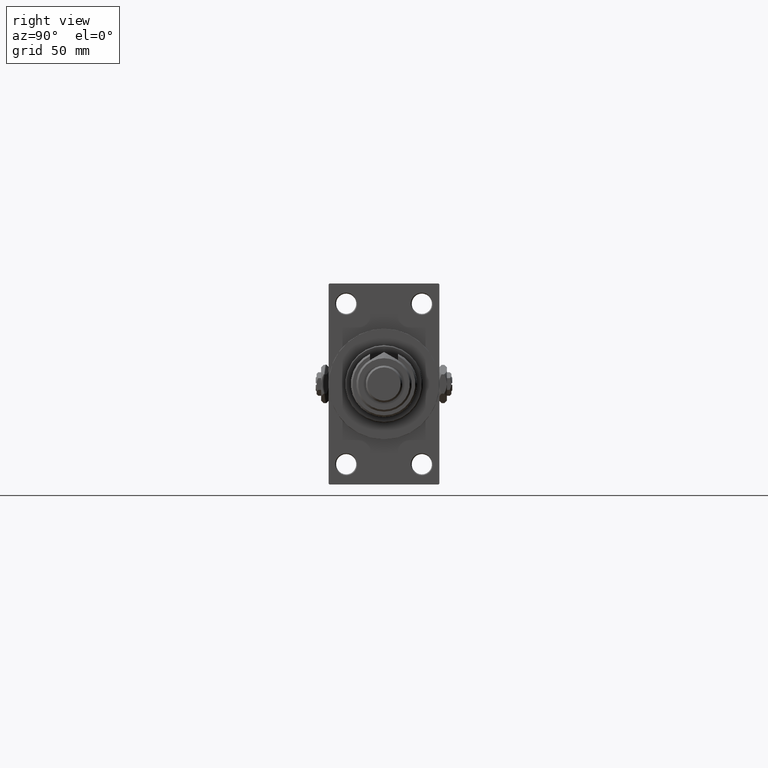
[diagram: clean part render]
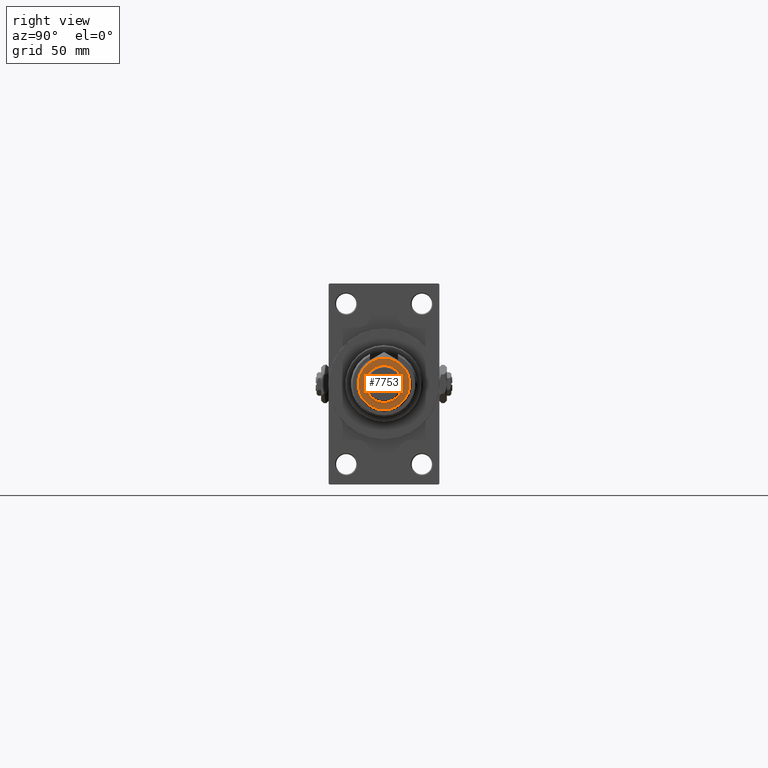
[diagram: same view with one face highlighted and labeled with its STEP entity id]
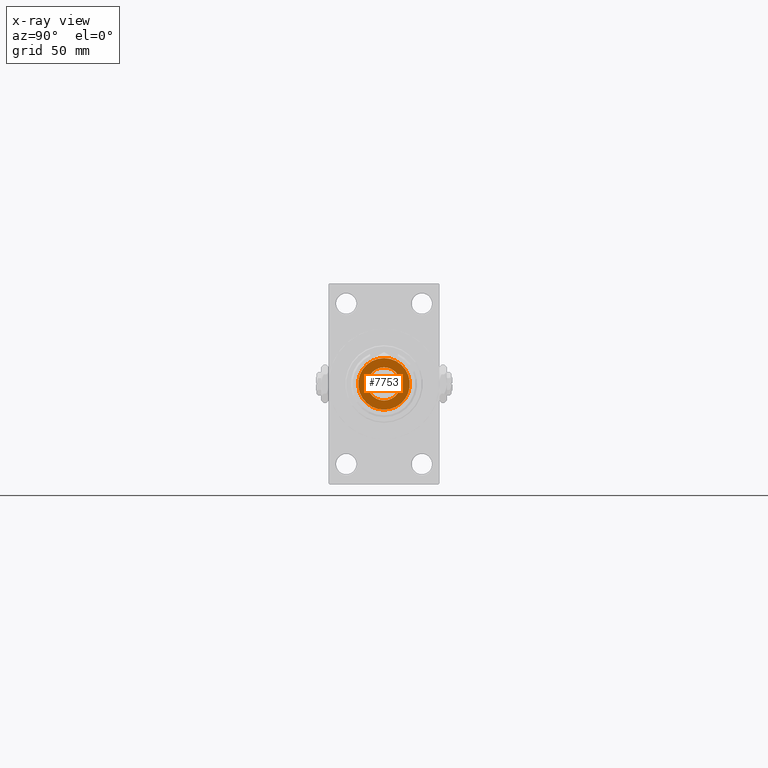
[diagram: x-ray of the same camera — body ghosted, the highlighted face saturated]
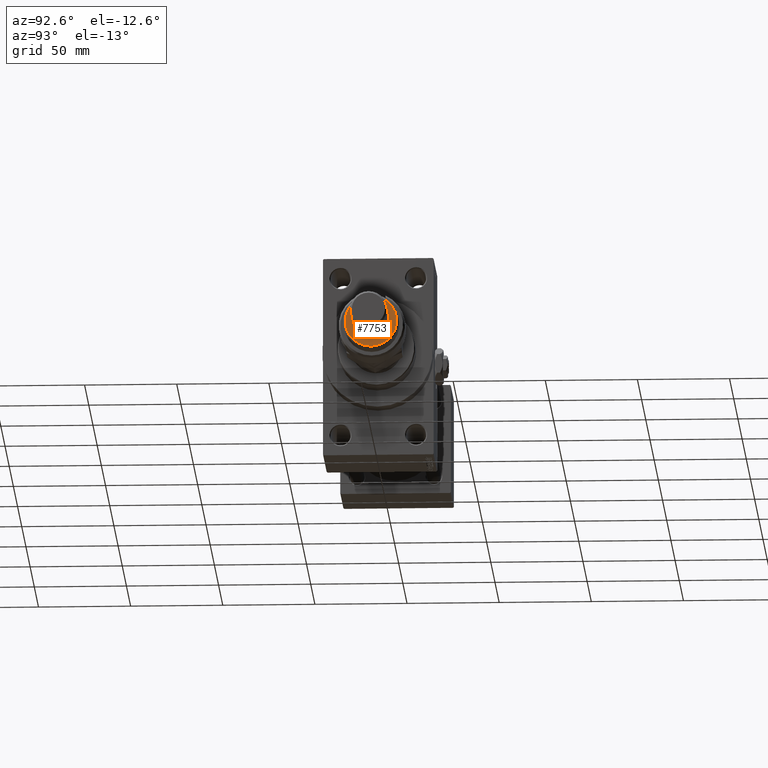
[diagram: same view with one face highlighted and labeled with its STEP entity id]
A machine part, right view. The second image highlights one B-rep face of the part: STEP entity #7753.
The next image is the same camera in x-ray: the body ghosted, the highlighted face saturated — about 0% of this face is hidden behind the body in this view.
A second angle (auxiliary view) of the same face is appended — the face is thin or edge-on in the first view.
In plain terms, the highlighted planar face has unit normal (1, 0, 0).
Its self-contained STEP definition (entity closure, byte-faithful):
#1563 = CARTESIAN_POINT ( 'NONE',  ( -9.000000000000000000, 0.000000000000000000, 26.00000000000000355 ) ) ;
#1695 = CARTESIAN_POINT ( 'NONE',  ( 0.000000000000000000, 0.000000000000000000, 26.00000000000000355 ) ) ;
#1915 = EDGE_CURVE ( 'NONE', #4215, #22550, #39638, .T. ) ;
#2121 = DIRECTION ( 'NONE',  ( 0.000000000000000000, 0.000000000000000000, 1.000000000000000000 ) ) ;
#2704 = ORIENTED_EDGE ( 'NONE', *, *, #35789, .T. ) ;
#4215 = VERTEX_POINT ( 'NONE', #18839 ) ;
#5153 = DIRECTION ( 'NONE',  ( 0.000000000000000000, 0.000000000000000000, 1.000000000000000000 ) ) ;
#5350 = DIRECTION ( 'NONE',  ( 0.000000000000000000, 0.000000000000000000, 1.000000000000000000 ) ) ;
#5408 = DIRECTION ( 'NONE',  ( 1.000000000000000000, 0.000000000000000000, -0.000000000000000000 ) ) ;
#7573 = VERTEX_POINT ( 'NONE', #31562 ) ;
#7753 = ADVANCED_FACE ( 'NONE', ( #24987, #10087 ), #21304, .T. ) ;
#7856 = DIRECTION ( 'NONE',  ( 1.000000000000000000, 0.000000000000000000, 0.000000000000000000 ) ) ;
#8646 = VERTEX_POINT ( 'NONE', #28152 ) ;
#8902 = CIRCLE ( 'NONE', #51328, 13.99999999999997513 ) ;
#9253 = DIRECTION ( 'NONE',  ( 0.000000000000000000, 0.000000000000000000, 1.000000000000000000 ) ) ;
#9420 = AXIS2_PLACEMENT_3D ( 'NONE', #37858, #2121, #33953 ) ;
#10087 = FACE_BOUND ( 'NONE', #34812, .T. ) ;
#11119 = CIRCLE ( 'NONE', #9420, 13.99999999999997513 ) ;
#11882 = CIRCLE ( 'NONE', #51011, 9.000000000000000000 ) ;
#12268 = AXIS2_PLACEMENT_3D ( 'NONE', #40887, #5153, #5408 ) ;
#12797 = CARTESIAN_POINT ( 'NONE',  ( 0.000000000000000000, 0.000000000000000000, 26.00000000000000355 ) ) ;
#12950 = ORIENTED_EDGE ( 'NONE', *, *, #25577, .T. ) ;
#16832 = DIRECTION ( 'NONE',  ( 1.000000000000000000, 0.000000000000000000, 0.000000000000000000 ) ) ;
#17147 = AXIS2_PLACEMENT_3D ( 'NONE', #1695, #5350, #37170 ) ;
#18839 = CARTESIAN_POINT ( 'NONE',  ( 9.000000000000000000, 1.102182119232617714E-15, 26.00000000000000355 ) ) ;
#20251 = ORIENTED_EDGE ( 'NONE', *, *, #22374, .F. ) ;
#21304 = PLANE ( 'NONE',  #12268 ) ;
#22374 = EDGE_CURVE ( 'NONE', #22550, #4215, #11882, .T. ) ;
#22550 = VERTEX_POINT ( 'NONE', #1563 ) ;
#24987 = FACE_OUTER_BOUND ( 'NONE', #49346, .T. ) ;
#25577 = EDGE_CURVE ( 'NONE', #8646, #7573, #11119, .T. ) ;
#28152 = CARTESIAN_POINT ( 'NONE',  ( 13.99999999999997513, 1.775737858763660437E-15, 26.00000000000000355 ) ) ;
#31562 = CARTESIAN_POINT ( 'NONE',  ( -13.99999999999997513, 0.000000000000000000, 26.00000000000000355 ) ) ;
#33953 = DIRECTION ( 'NONE',  ( 1.000000000000000000, 0.000000000000000000, 0.000000000000000000 ) ) ;
#34812 = EDGE_LOOP ( 'NONE', ( #20251, #47042 ) ) ;
#35789 = EDGE_CURVE ( 'NONE', #7573, #8646, #8902, .T. ) ;
#37170 = DIRECTION ( 'NONE',  ( 1.000000000000000000, 0.000000000000000000, 0.000000000000000000 ) ) ;
#37858 = CARTESIAN_POINT ( 'NONE',  ( 0.000000000000000000, 0.000000000000000000, 26.00000000000000355 ) ) ;
#39638 = CIRCLE ( 'NONE', #17147, 9.000000000000000000 ) ;
#40887 = CARTESIAN_POINT ( 'NONE',  ( 0.000000000000000000, 0.000000000000000000, 26.00000000000000355 ) ) ;
#43573 = DIRECTION ( 'NONE',  ( 0.000000000000000000, 0.000000000000000000, 1.000000000000000000 ) ) ;
#44982 = CARTESIAN_POINT ( 'NONE',  ( 0.000000000000000000, 0.000000000000000000, 26.00000000000000355 ) ) ;
#47042 = ORIENTED_EDGE ( 'NONE', *, *, #1915, .F. ) ;
#49346 = EDGE_LOOP ( 'NONE', ( #2704, #12950 ) ) ;
#51011 = AXIS2_PLACEMENT_3D ( 'NONE', #12797, #43573, #7856 ) ;
#51328 = AXIS2_PLACEMENT_3D ( 'NONE', #44982, #9253, #16832 ) ;